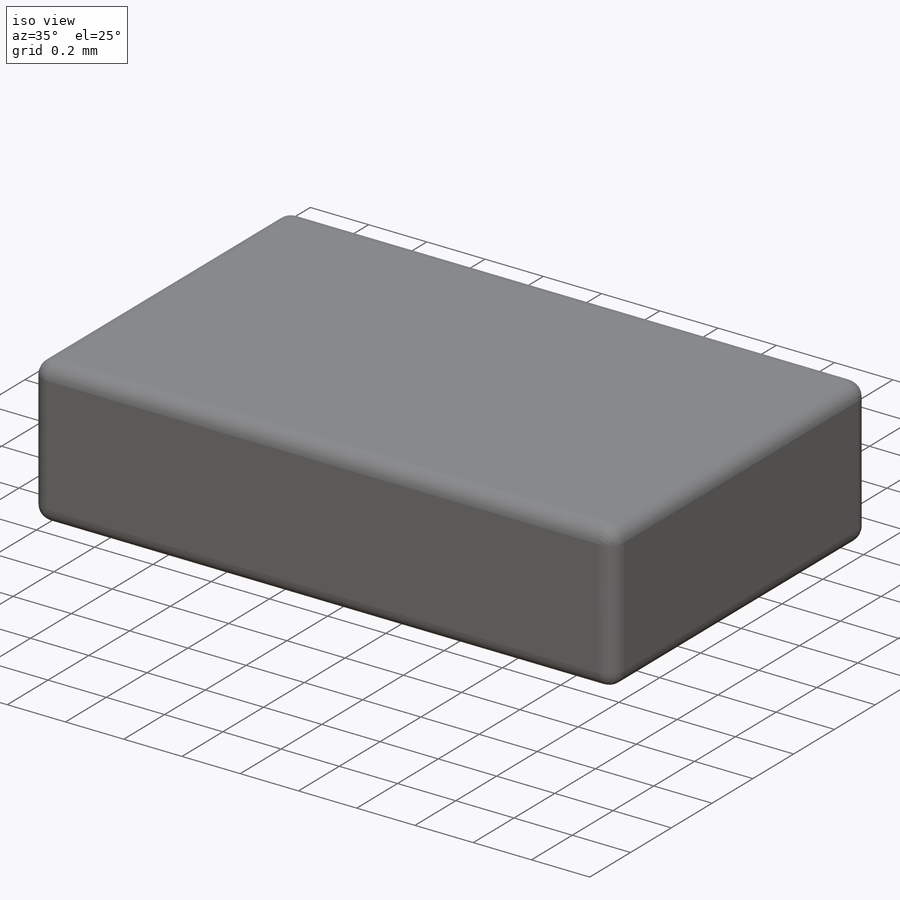
[diagram: iso view]
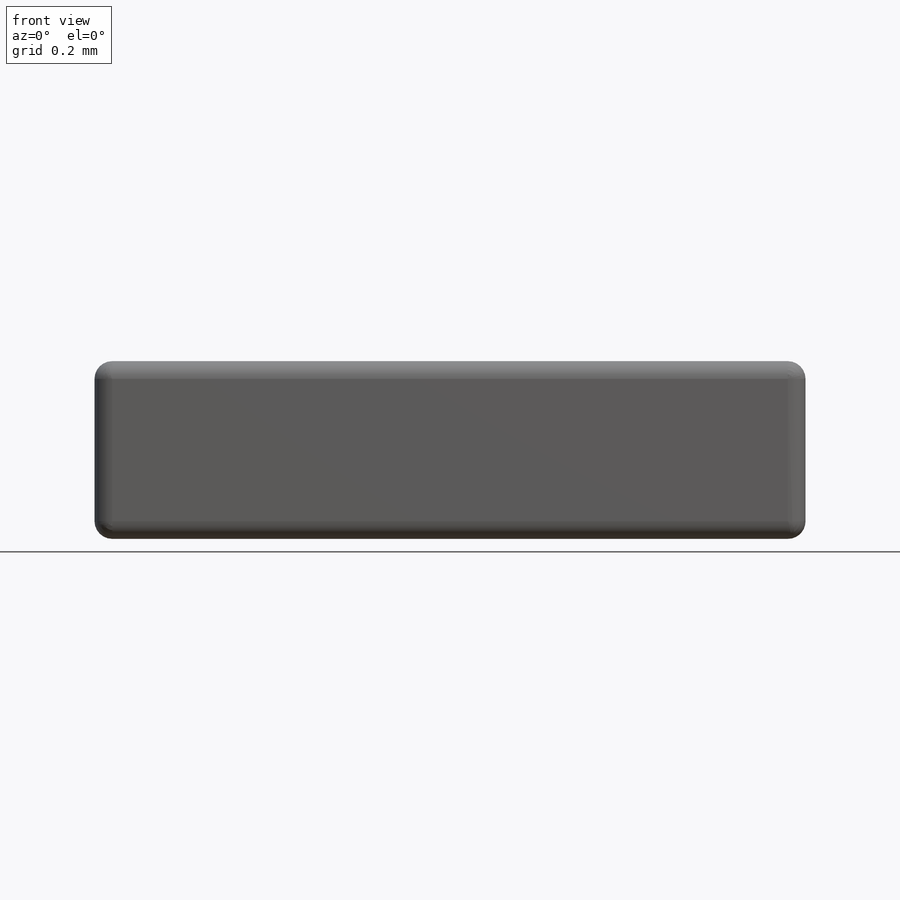
[diagram: front view]
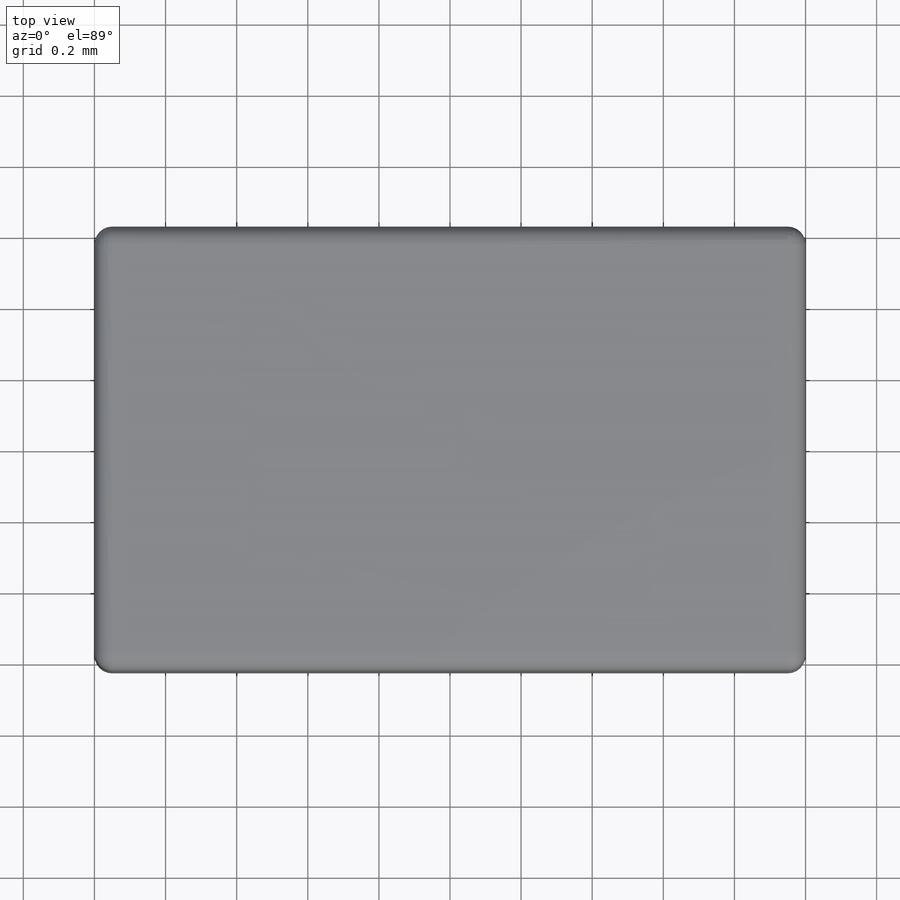
[diagram: top view]
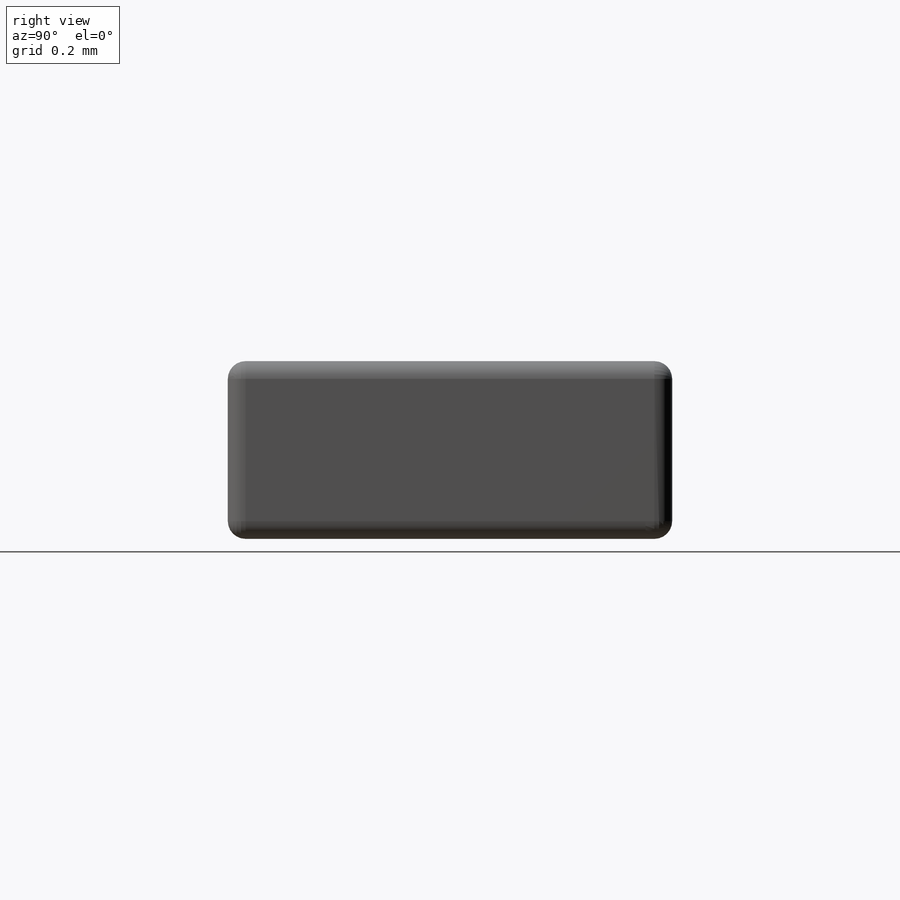
[diagram: right view]
SOLIDWORKS PART (.sldprt)
format: sldprt  version: not decoded by parser v0  size: 352,768 bytes
history: native  units: mm
features: sketch x4, extrude x3, material x1, fillet x1 (+12 scaffold rows collapsed)
feature tree (21):
  scaffold x12  (default folders/planes/origin — collapsed)
  material  "Material <not specified>"
  sketch  "Sketch1"  dims[D1=2.0mm D2=1.25mm]
  extrude  "Boss-Extrude1"  Depth=0.5mm
  sketch  "Sketch2"  dims[D1=0.8mm D2=0.3mm D3=~0.234858mm]
  sketch  "Sketch3"
  extrude  "Split Line2"  [1 undecoded]
  sketch  "Sketch4"  dims[D1=0.3mm D2=0.8mm]
  extrude  "Split Line3"  [1 undecoded]
  fillet  "Fillet1"  Radius=0.05mm
decode coverage: 5 of 8 modeling features carry decoded parameters
note: ~ marks probable driven/reference dimensions
note: 2 parameter values undecoded
note: suppression state not decoded; provenance and decode notes live in map.json
